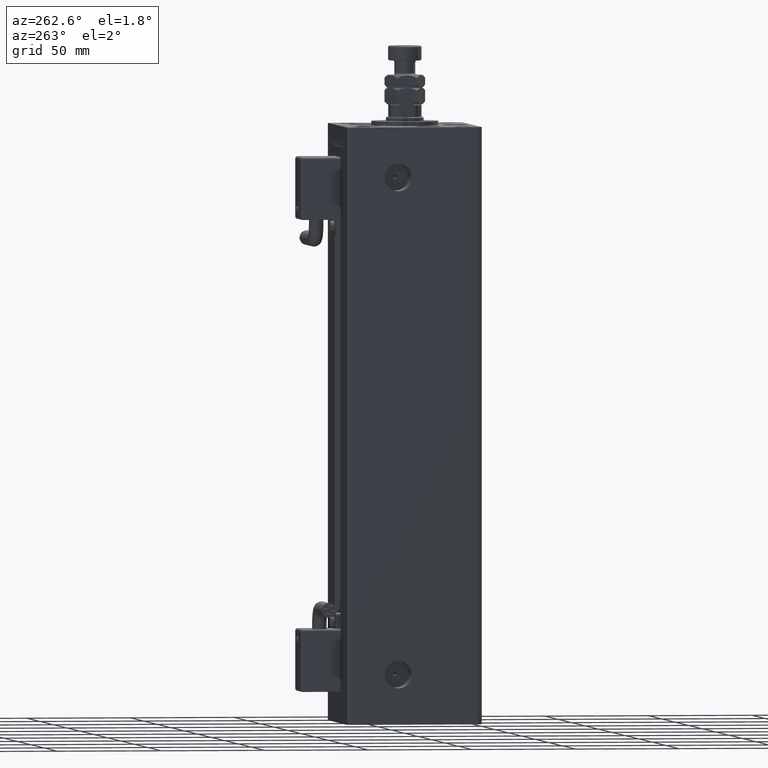
[diagram: clean part render]
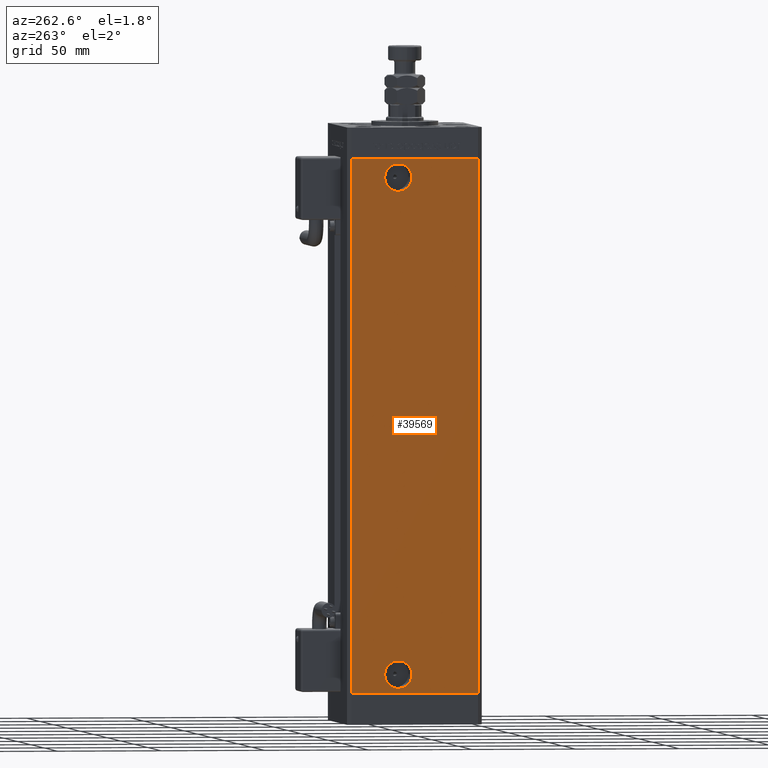
[diagram: same view with one face highlighted and labeled with its STEP entity id]
A machine part, auxiliary view. The second image highlights one B-rep face of the part: STEP entity #39569.
In plain terms, the highlighted planar face has unit normal (1, 0, 0).
Its self-contained STEP definition (entity closure, byte-faithful):
#453 = ORIENTED_EDGE ( 'NONE', *, *, #3255, .F. ) ;
#797 = EDGE_CURVE ( 'NONE', #5089, #48439, #22005, .T. ) ;
#1773 = CARTESIAN_POINT ( 'NONE',  ( -37.50000000000000711, 30.50000000000000000, 256.0000000000000000 ) ) ;
#1934 = VERTEX_POINT ( 'NONE', #7651 ) ;
#2769 = CARTESIAN_POINT ( 'NONE',  ( -37.49999999999999289, -30.50000000000000000, 256.0000000000000000 ) ) ;
#3255 = EDGE_CURVE ( 'NONE', #17774, #36240, #56087, .T. ) ;
#5089 = VERTEX_POINT ( 'NONE', #25161 ) ;
#5614 = DIRECTION ( 'NONE',  ( -0.000000000000000000, -0.000000000000000000, -1.000000000000000000 ) ) ;
#6054 = EDGE_LOOP ( 'NONE', ( #46392, #50579 ) ) ;
#7651 = CARTESIAN_POINT ( 'NONE',  ( -37.49999999999999289, -30.50000000000000000, 0.000000000000000000 ) ) ;
#8442 = DIRECTION ( 'NONE',  ( -0.000000000000000000, -0.000000000000000000, -1.000000000000000000 ) ) ;
#9309 = ORIENTED_EDGE ( 'NONE', *, *, #41920, .F. ) ;
#9479 = CIRCLE ( 'NONE', #24158, 6.580000000000044480 ) ;
#9719 = VERTEX_POINT ( 'NONE', #2769 ) ;
#9941 = CARTESIAN_POINT ( 'NONE',  ( -37.50000000000000711, 30.50000000000000000, 256.0000000000000000 ) ) ;
#11469 = EDGE_LOOP ( 'NONE', ( #21457, #27833, #28099, #38638 ) ) ;
#12583 = EDGE_CURVE ( 'NONE', #49657, #9719, #36810, .T. ) ;
#15240 = AXIS2_PLACEMENT_3D ( 'NONE', #47780, #21641, #56699 ) ;
#15268 = DIRECTION ( 'NONE',  ( 2.275047181608927644E-16, -1.000000000000000000, 0.000000000000000000 ) ) ;
#15955 = CARTESIAN_POINT ( 'NONE',  ( -37.50000000000000711, 30.50000000000000000, 0.000000000000000000 ) ) ;
#16336 = CARTESIAN_POINT ( 'NONE',  ( -37.50000000000000711, 30.50000000000000000, 256.0000000000000000 ) ) ;
#16484 = CARTESIAN_POINT ( 'NONE',  ( -37.50000000000000711, 30.50000000000000000, 256.0000000000000000 ) ) ;
#17774 = VERTEX_POINT ( 'NONE', #21448 ) ;
#19131 = CARTESIAN_POINT ( 'NONE',  ( -37.50000000000000000, 1.419999999999988161, 9.000000000000000000 ) ) ;
#19139 = CARTESIAN_POINT ( 'NONE',  ( -37.50000000000000711, 30.50000000000000000, 0.000000000000000000 ) ) ;
#21197 = DIRECTION ( 'NONE',  ( -2.275047181608927644E-16, 1.000000000000000000, 0.000000000000000000 ) ) ;
#21448 = CARTESIAN_POINT ( 'NONE',  ( -37.50000000000000000, 14.57999999999999652, 9.000000000000000000 ) ) ;
#21457 = ORIENTED_EDGE ( 'NONE', *, *, #51751, .T. ) ;
#21641 = DIRECTION ( 'NONE',  ( -1.000000000000000000, -2.275047181608927644E-16, 0.000000000000000000 ) ) ;
#22005 = CIRCLE ( 'NONE', #49582, 6.580000000000044480 ) ;
#24055 = CARTESIAN_POINT ( 'NONE',  ( -37.50000000000000000, 7.999999999999991118, 247.0000000000000000 ) ) ;
#24158 = AXIS2_PLACEMENT_3D ( 'NONE', #24055, #28670, #38394 ) ;
#25161 = CARTESIAN_POINT ( 'NONE',  ( -37.50000000000000000, 1.419999999999947304, 247.0000000000000000 ) ) ;
#25525 = FACE_BOUND ( 'NONE', #32389, .T. ) ;
#26151 = AXIS2_PLACEMENT_3D ( 'NONE', #16336, #43041, #21197 ) ;
#27055 = LINE ( 'NONE', #34593, #33816 ) ;
#27485 = LINE ( 'NONE', #9941, #54874 ) ;
#27833 = ORIENTED_EDGE ( 'NONE', *, *, #31317, .F. ) ;
#28099 = ORIENTED_EDGE ( 'NONE', *, *, #12583, .F. ) ;
#28670 = DIRECTION ( 'NONE',  ( -1.000000000000000000, -2.275047181608927644E-16, 0.000000000000000000 ) ) ;
#30589 = VECTOR ( 'NONE', #54753, 1000.000000000000000 ) ;
#31209 = EDGE_CURVE ( 'NONE', #49657, #32245, #27485, .T. ) ;
#31317 = EDGE_CURVE ( 'NONE', #9719, #1934, #27055, .T. ) ;
#32245 = VERTEX_POINT ( 'NONE', #15955 ) ;
#32389 = EDGE_LOOP ( 'NONE', ( #9309, #453 ) ) ;
#33816 = VECTOR ( 'NONE', #8442, 1000.000000000000000 ) ;
#34287 = VECTOR ( 'NONE', #15268, 1000.000000000000000 ) ;
#34593 = CARTESIAN_POINT ( 'NONE',  ( -37.49999999999999289, -30.50000000000000000, 256.0000000000000000 ) ) ;
#35424 = DIRECTION ( 'NONE',  ( -1.000000000000000000, -2.275047181608927644E-16, 0.000000000000000000 ) ) ;
#36240 = VERTEX_POINT ( 'NONE', #19131 ) ;
#36605 = CARTESIAN_POINT ( 'NONE',  ( -37.50000000000000000, 14.58000000000003560, 247.0000000000000000 ) ) ;
#36810 = LINE ( 'NONE', #1773, #34287 ) ;
#38394 = DIRECTION ( 'NONE',  ( 0.000000000000000000, -1.000000000000000000, 0.000000000000000000 ) ) ;
#38638 = ORIENTED_EDGE ( 'NONE', *, *, #31209, .T. ) ;
#39279 = FACE_BOUND ( 'NONE', #6054, .T. ) ;
#39382 = DIRECTION ( 'NONE',  ( -1.000000000000000000, -2.275047181608927644E-16, 0.000000000000000000 ) ) ;
#39569 = ADVANCED_FACE ( 'NONE', ( #25525, #39279, #56816 ), #55974, .F. ) ;
#41393 = AXIS2_PLACEMENT_3D ( 'NONE', #52622, #39382, #51763 ) ;
#41920 = EDGE_CURVE ( 'NONE', #36240, #17774, #49201, .T. ) ;
#43041 = DIRECTION ( 'NONE',  ( 1.000000000000000000, 2.275047181608927644E-16, -0.000000000000000000 ) ) ;
#45256 = LINE ( 'NONE', #19139, #30589 ) ;
#46392 = ORIENTED_EDGE ( 'NONE', *, *, #797, .F. ) ;
#47780 = CARTESIAN_POINT ( 'NONE',  ( -37.50000000000000000, 7.999999999999991118, 9.000000000000000000 ) ) ;
#48067 = DIRECTION ( 'NONE',  ( 0.000000000000000000, -1.000000000000000000, 0.000000000000000000 ) ) ;
#48439 = VERTEX_POINT ( 'NONE', #36605 ) ;
#48655 = CARTESIAN_POINT ( 'NONE',  ( -37.50000000000000000, 7.999999999999991118, 247.0000000000000000 ) ) ;
#49201 = CIRCLE ( 'NONE', #15240, 6.580000000000003624 ) ;
#49582 = AXIS2_PLACEMENT_3D ( 'NONE', #48655, #35424, #48067 ) ;
#49657 = VERTEX_POINT ( 'NONE', #16484 ) ;
#50579 = ORIENTED_EDGE ( 'NONE', *, *, #51502, .F. ) ;
#51502 = EDGE_CURVE ( 'NONE', #48439, #5089, #9479, .T. ) ;
#51751 = EDGE_CURVE ( 'NONE', #32245, #1934, #45256, .T. ) ;
#51763 = DIRECTION ( 'NONE',  ( 0.000000000000000000, -1.000000000000000000, 0.000000000000000000 ) ) ;
#52622 = CARTESIAN_POINT ( 'NONE',  ( -37.50000000000000000, 7.999999999999991118, 9.000000000000000000 ) ) ;
#54753 = DIRECTION ( 'NONE',  ( 2.275047181608927644E-16, -1.000000000000000000, 0.000000000000000000 ) ) ;
#54874 = VECTOR ( 'NONE', #5614, 1000.000000000000000 ) ;
#55974 = PLANE ( 'NONE',  #26151 ) ;
#56087 = CIRCLE ( 'NONE', #41393, 6.580000000000003624 ) ;
#56699 = DIRECTION ( 'NONE',  ( 0.000000000000000000, -1.000000000000000000, 0.000000000000000000 ) ) ;
#56816 = FACE_OUTER_BOUND ( 'NONE', #11469, .T. ) ;